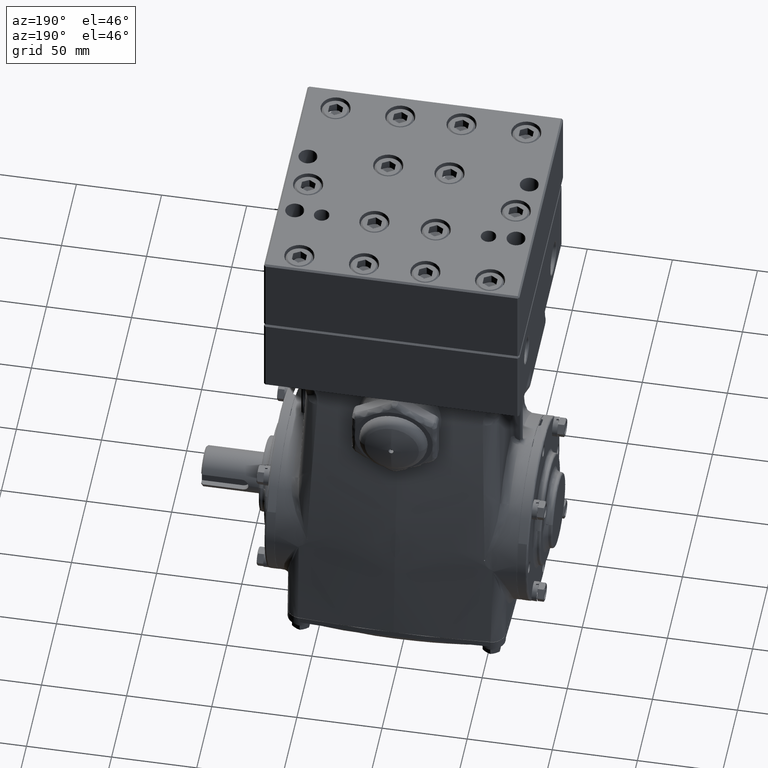
[diagram: clean part render]
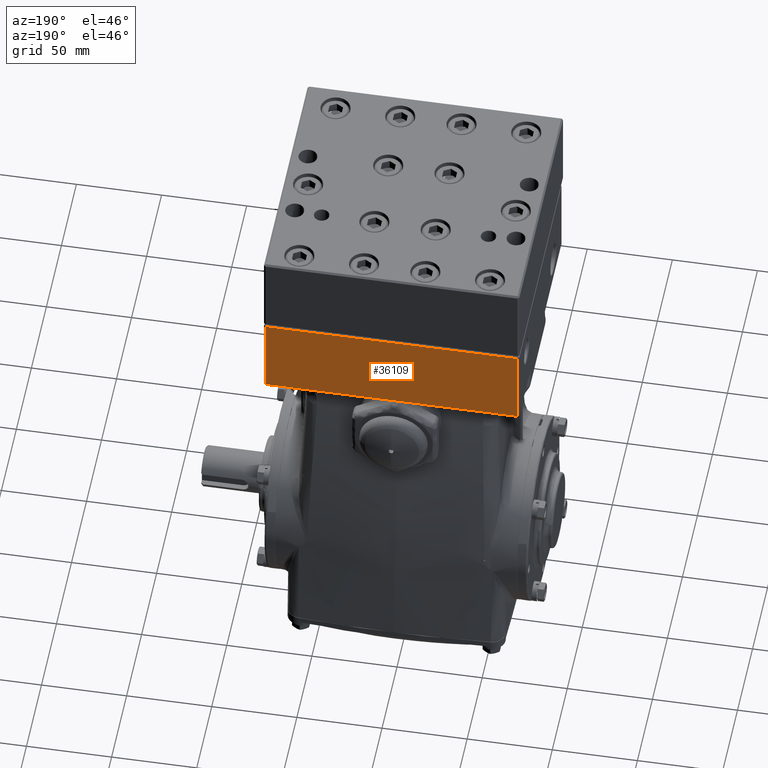
[diagram: same view with one face highlighted and labeled with its STEP entity id]
A machine part, auxiliary view. The second image highlights one B-rep face of the part: STEP entity #36109.
In plain terms, the highlighted planar face has unit normal (-0, 1, 0).
Its self-contained STEP definition (entity closure, byte-faithful):
#1916 = CARTESIAN_POINT ( 'NONE',  ( 2.913385826771653697, 2.696850393700787496, 7.637795275590551825 ) ) ;
#2456 = LINE ( 'NONE', #21708, #67507 ) ;
#6283 = VECTOR ( 'NONE', #60012, 39.37007874015748143 ) ;
#6327 = DIRECTION ( 'NONE',  ( 1.000000000000000000, 0.000000000000000000, 0.000000000000000000 ) ) ;
#6599 = AXIS2_PLACEMENT_3D ( 'NONE', #26395, #53047, #79714 ) ;
#9765 = ORIENTED_EDGE ( 'NONE', *, *, #29165, .T. ) ;
#13676 = CARTESIAN_POINT ( 'NONE',  ( -2.952755905511811108, 2.696850393700787496, 5.748031496062991685 ) ) ;
#14749 = DIRECTION ( 'NONE',  ( 0.000000000000000000, 0.000000000000000000, 1.000000000000000000 ) ) ;
#19787 = DIRECTION ( 'NONE',  ( 0.000000000000000000, 0.000000000000000000, -1.000000000000000000 ) ) ;
#20666 = LINE ( 'NONE', #66975, #25762 ) ;
#21708 = CARTESIAN_POINT ( 'NONE',  ( -2.913385826771653697, 2.696850393700787496, 7.677165354330709235 ) ) ;
#25762 = VECTOR ( 'NONE', #19787, 39.37007874015748143 ) ;
#26395 = CARTESIAN_POINT ( 'NONE',  ( -2.952755905511811108, 2.696850393700787496, 7.677165354330709235 ) ) ;
#29026 = VERTEX_POINT ( 'NONE', #68357 ) ;
#29165 = EDGE_CURVE ( 'NONE', #79700, #35421, #38996, .T. ) ;
#35421 = VERTEX_POINT ( 'NONE', #60913 ) ;
#36047 = ORIENTED_EDGE ( 'NONE', *, *, #45336, .T. ) ;
#36109 = ADVANCED_FACE ( 'NONE', ( #86317 ), #66595, .T. ) ;
#38996 = LINE ( 'NONE', #13676, #6283 ) ;
#45336 = EDGE_CURVE ( 'NONE', #29026, #50703, #66198, .T. ) ;
#49681 = EDGE_LOOP ( 'NONE', ( #36047, #68010, #9765, #63153 ) ) ;
#50703 = VERTEX_POINT ( 'NONE', #1916 ) ;
#52220 = CARTESIAN_POINT ( 'NONE',  ( -2.952755905511811108, 2.696850393700787496, 7.637795275590551825 ) ) ;
#53047 = DIRECTION ( 'NONE',  ( -0.000000000000000000, 1.000000000000000000, 0.000000000000000000 ) ) ;
#54570 = EDGE_CURVE ( 'NONE', #35421, #29026, #2456, .T. ) ;
#60012 = DIRECTION ( 'NONE',  ( -1.000000000000000000, 0.000000000000000000, 0.000000000000000000 ) ) ;
#60913 = CARTESIAN_POINT ( 'NONE',  ( -2.913385826771653697, 2.696850393700787496, 5.748031496062991685 ) ) ;
#63153 = ORIENTED_EDGE ( 'NONE', *, *, #54570, .T. ) ;
#66198 = LINE ( 'NONE', #52220, #73535 ) ;
#66595 = PLANE ( 'NONE',  #6599 ) ;
#66975 = CARTESIAN_POINT ( 'NONE',  ( 2.913385826771653697, 2.696850393700787496, 5.708661417322834275 ) ) ;
#67507 = VECTOR ( 'NONE', #14749, 39.37007874015748143 ) ;
#68010 = ORIENTED_EDGE ( 'NONE', *, *, #85152, .T. ) ;
#68357 = CARTESIAN_POINT ( 'NONE',  ( -2.913385826771653697, 2.696850393700787496, 7.637795275590551825 ) ) ;
#73535 = VECTOR ( 'NONE', #6327, 39.37007874015748143 ) ;
#78598 = CARTESIAN_POINT ( 'NONE',  ( 2.913385826771653697, 2.696850393700787496, 5.748031496062991685 ) ) ;
#79700 = VERTEX_POINT ( 'NONE', #78598 ) ;
#79714 = DIRECTION ( 'NONE',  ( 0.000000000000000000, -0.000000000000000000, 1.000000000000000000 ) ) ;
#85152 = EDGE_CURVE ( 'NONE', #50703, #79700, #20666, .T. ) ;
#86317 = FACE_OUTER_BOUND ( 'NONE', #49681, .T. ) ;